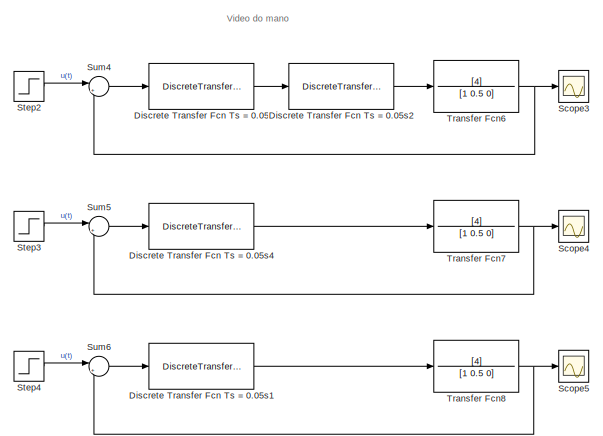
[diagram: root canvas - part 1/6, top right region]
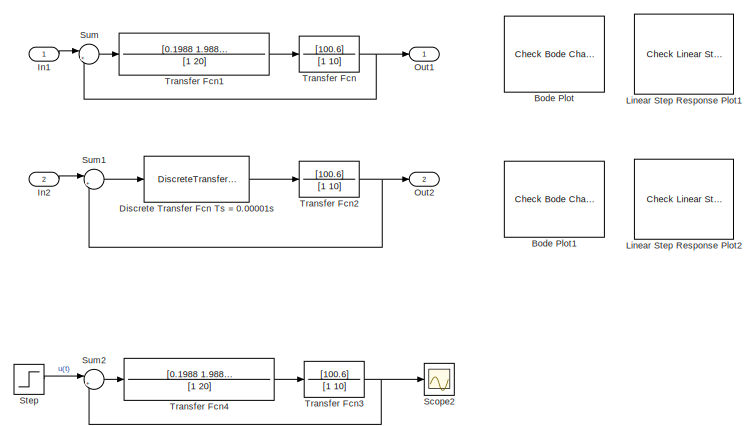
[diagram: root canvas - part 2/6, top left region]
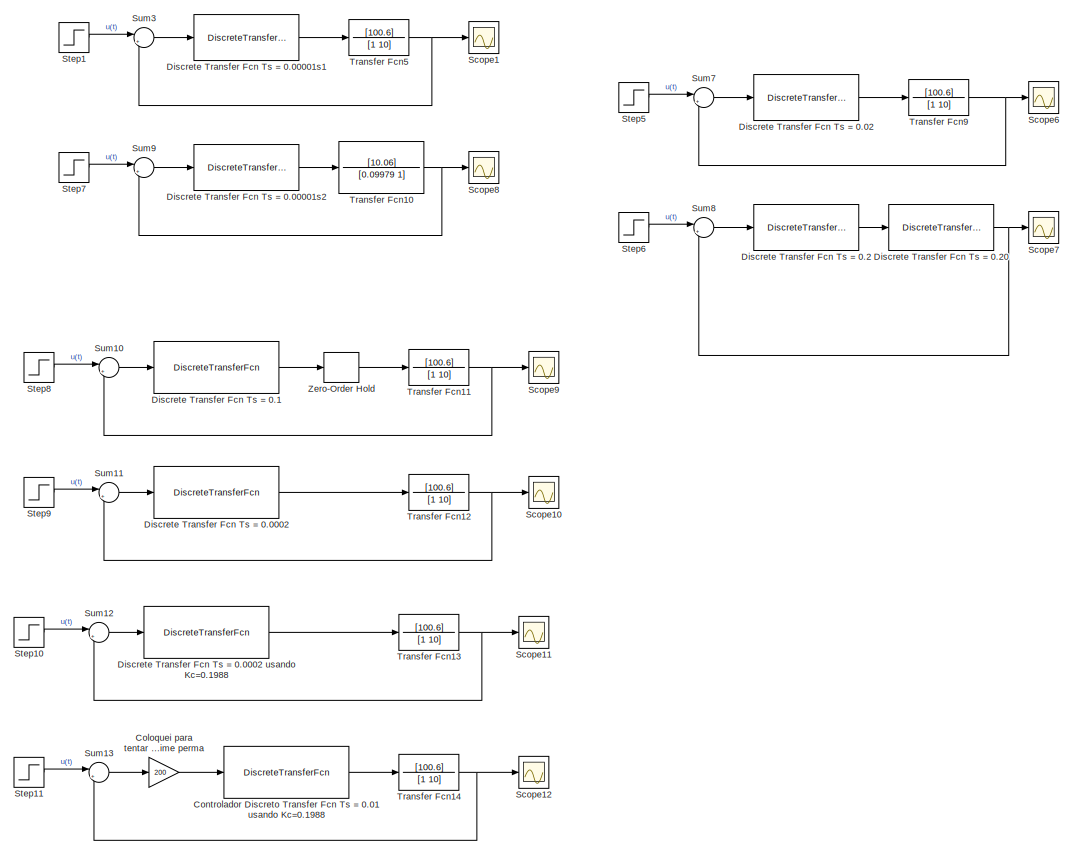
[diagram: root canvas - part 3/6, top center region]
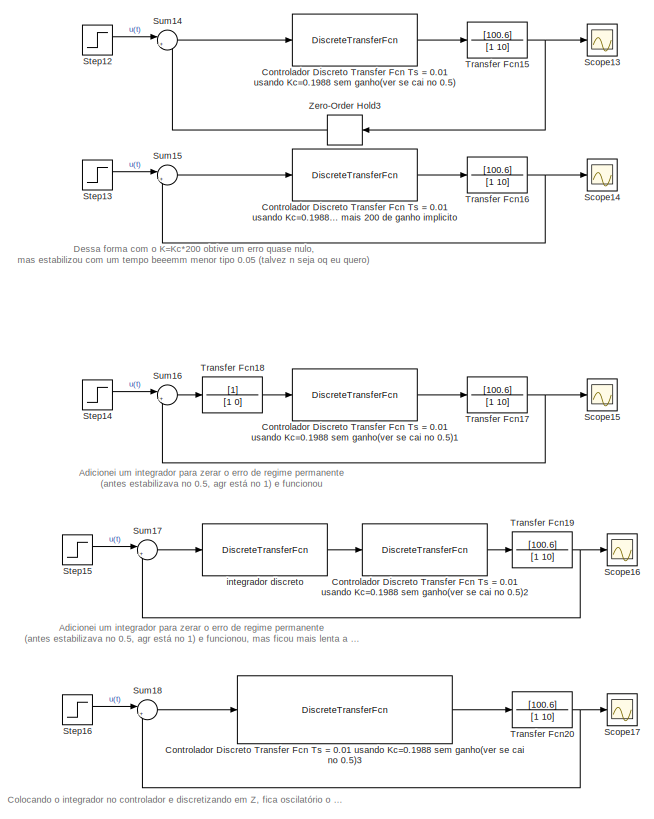
[diagram: root canvas - part 4/6, middle left region]
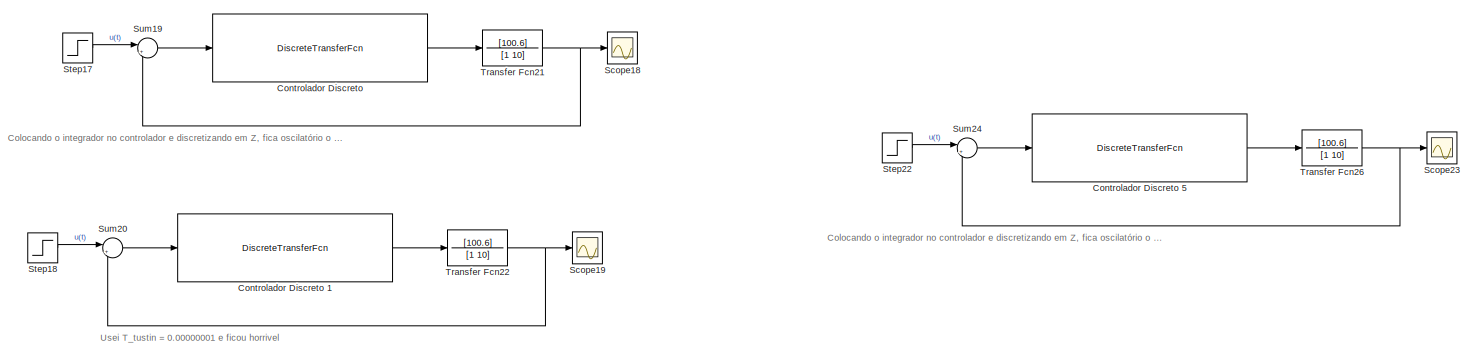
[diagram: root canvas - part 5/6, full width, bottom band]
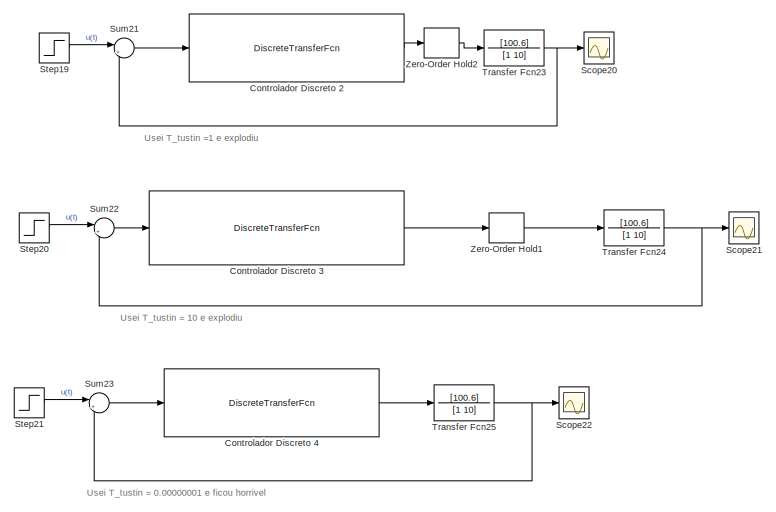
[diagram: root canvas - part 6/6, bottom left region]
MODEL slx_ce7d7df38e49
KIND model
CONFIG AbsTol = auto
CONFIG EnableMultiTasking = off
CONFIG FixedStep = auto
CONFIG MaxStep = auto
CONFIG MinStep = auto
CONFIG RelTol = 1e-3
CONFIG SampleTimeConstraint = Unconstrained
CONFIG Solver = VariableStepAuto
CONFIG SolverName = VariableStepAuto
CONFIG StartTime = 0.0
CONFIG StopTime = 10.0
BLOCK [Reference] Bode Plot  REF=slctrlblks/Model Verification/Check Bode 
Characteristics
  InstantiateOnLoad = on
  Ports = []
  SourceBlock = slctrlblks/Model Verification/Check Bode \nCharacteristics
  SourceProductBaseCode = SD
  SourceType = Checks_Bode
BLOCK [Reference] Bode Plot1  REF=slctrlblks/Model Verification/Check Bode 
Characteristics
  InstantiateOnLoad = on
  Ports = []
  SourceBlock = slctrlblks/Model Verification/Check Bode \nCharacteristics
  SourceProductBaseCode = SD
  SourceType = Checks_Bode
BLOCK [Gain] Coloquei para tentar zerar o erro de regime perma
  Gain = 200
BLOCK [DiscreteTransferFcn] Controlador Discreto 
  Denominator = [1 -1]
  InputPortMap = u0
  Numerator = [0.266303231333277 -0.171072514193562]
  Ports = [1, 1]
BLOCK [DiscreteTransferFcn] Controlador Discreto 1
  Denominator = [1 -1]
  InputPortMap = u0
  Numerator = [0.218687920378778 -0.218687825148061]
  Ports = [1, 1]
BLOCK [DiscreteTransferFcn] Controlador Discreto 2
  Denominator = [1 -1]
  InputPortMap = u0
  Numerator = [4.980223729749151 4.542847984222311]
  Ports = [1, 1]
BLOCK [DiscreteTransferFcn] Controlador Discreto 3
  Denominator = [1 -1]
  InputPortMap = u0
  Numerator = [47.834046442620739 47.396670697093889]
  Ports = [1, 1]
BLOCK [DiscreteTransferFcn] Controlador Discreto 4
  Denominator = [1 -1]
  InputPortMap = u0
  Numerator = [0.218718346592904 -0.218657398933935]
  Ports = [1, 1]
BLOCK [DiscreteTransferFcn] Controlador Discreto 5
  Denominator = [1 -1]
  InputPortMap = u0
  Numerator = [0.313918589903134 -0.123457155623705]
  Ports = [1, 1]
BLOCK [DiscreteTransferFcn] Controlador Discreto Transfer Fcn Ts = 0.01 usando Kc=0.1988
  Denominator = [1 -0.8182]
  InputPortMap = u0
  Numerator = [0.1898 -0.1717]
  Ports = [1, 1]
BLOCK [DiscreteTransferFcn] Controlador Discreto Transfer Fcn Ts = 0.01 usando Kc=0.1988 com mais 200 de ganho implicito
  Denominator = [1 -0.8182]
  InputPortMap = u0
  Numerator = [37.95 -34.34]
  Ports = [1, 1]
BLOCK [DiscreteTransferFcn] Controlador Discreto Transfer Fcn Ts = 0.01 usando Kc=0.1988 sem ganho(ver se cai no 0.5)
  Denominator = [1 -0.8182]
  InputPortMap = u0
  Numerator = [0.1898 -0.1717]
  Ports = [1, 1]
BLOCK [DiscreteTransferFcn] Controlador Discreto Transfer Fcn Ts = 0.01 usando Kc=0.1988 sem ganho(ver se cai no 0.5)1
  Denominator = [1 -0.8182]
  InputPortMap = u0
  Numerator = [0.1898 -0.1717]
  Ports = [1, 1]
BLOCK [DiscreteTransferFcn] Controlador Discreto Transfer Fcn Ts = 0.01 usando Kc=0.1988 sem ganho(ver se cai no 0.5)2
  Denominator = [1 -0.8182]
  InputPortMap = u0
  Numerator = [0.1898 -0.1717]
  Ports = [1, 1]
BLOCK [DiscreteTransferFcn] Controlador Discreto Transfer Fcn Ts = 0.01 usando Kc=0.1988 sem ganho(ver se cai no 0.5)3
  Denominator = [1 -1.818 0.8182]
  InputPortMap = u0
  Numerator = [0.0009488 9.036e-05 -0.0008585]
  Ports = [1, 1]
BLOCK [DiscreteTransferFcn] Discrete Transfer Fcn Ts = 0.00001s
  Denominator = [1 0]
  InputPortMap = u0
  Numerator = [0.1988 -0.0994]
  Ports = [1, 1]
BLOCK [DiscreteTransferFcn] Discrete Transfer Fcn Ts = 0.00001s1
  Denominator = [1 0]
  InputPortMap = u0
  Numerator = [0.1988 -0.0994]
  Ports = [1, 1]
BLOCK [DiscreteTransferFcn] Discrete Transfer Fcn Ts = 0.00001s2
  Denominator = [1 0]
  InputPortMap = u0
  Numerator = [0.1988 -0.0994]
  Ports = [1, 1]
BLOCK [DiscreteTransferFcn] Discrete Transfer Fcn Ts = 0.0002
  Denominator = [1 -0.996]
  InputPortMap = u0
  Numerator = [0.999 -0.997]
  Ports = [1, 1]
BLOCK [DiscreteTransferFcn] Discrete Transfer Fcn Ts = 0.0002 usando Kc=0.1988
  Denominator = [1 -0.996]
  InputPortMap = u0
  Numerator = [0.1986 -0.1982]
  Ports = [1, 1]
BLOCK [DiscreteTransferFcn] Discrete Transfer Fcn Ts = 0.02
  Denominator = [1 0.3333]
  InputPortMap = u0
  Numerator = [0.6667 0]
  Ports = [1, 1]
BLOCK [DiscreteTransferFcn] Discrete Transfer Fcn Ts = 0.05
  Denominator = [1 -0.6549]
  InputPortMap = u0
  Numerator = [0.8767 -0.7782]
  Ports = [1, 1]
BLOCK [DiscreteTransferFcn] Discrete Transfer Fcn Ts = 0.05s1
  Denominator = [1 -0.6549]
  InputPortMap = u0
  Numerator = [0.8767 -0.7782]
  Ports = [1, 1]
BLOCK [DiscreteTransferFcn] Discrete Transfer Fcn Ts = 0.05s2
  Denominator = [1 -0.9986]
  InputPortMap = u0
  Numerator = [1.002 -0.9968]
  Ports = [1, 1]
BLOCK [DiscreteTransferFcn] Discrete Transfer Fcn Ts = 0.05s4
  Denominator = [1 0.9532]
  InputPortMap = u0
  Numerator = [0.3021 0.2553]
  Ports = [1, 1]
BLOCK [DiscreteTransferFcn] Discrete Transfer Fcn Ts = 0.1
  Denominator = [1 -0.998]
  InputPortMap = u0
  Numerator = [0.01005 0.01005]
  Ports = [1, 1]
BLOCK [DiscreteTransferFcn] Discrete Transfer Fcn Ts = 0.2
  Denominator = [1 0.3333]
  InputPortMap = u0
  Numerator = [0.6667 0]
  Ports = [1, 1]
BLOCK [DiscreteTransferFcn] Discrete Transfer Fcn Ts = 0.20
  Denominator = [1 0]
  InputPortMap = u0
  Numerator = [5.03 5.03]
  Ports = [1, 1]
BLOCK [Inport] In1
BLOCK [Inport] In2
  Port = 2
BLOCK [Reference] Linear Step Response Plot1  REF=slctrlblks/Model Verification/Check Linear Step Response
Characteristics
  InstantiateOnLoad = on
  Ports = []
  SourceBlock = slctrlblks/Model Verification/Check Linear Step Response\nCharacteristics
  SourceProductBaseCode = SD
  SourceType = Checks_LinearStepResponse
BLOCK [Reference] Linear Step Response Plot2  REF=slctrlblks/Model Verification/Check Linear Step Response
Characteristics
  InstantiateOnLoad = on
  Ports = []
  SourceBlock = slctrlblks/Model Verification/Check Linear Step Response\nCharacteristics
  SourceProductBaseCode = SD
  SourceType = Checks_LinearStepResponse
BLOCK [Outport] Out1
BLOCK [Outport] Out2
  Port = 2
BLOCK [Scope] Scope1
  Floating = off
  NumInputPorts = 1
  Ports = [1]
  ScopeSpecificationString = Simulink.scopes.TimeScopeBlockCfg('CurrentConfiguration', extmgr.ConfigurationSet(extmgr.Configuration('Core','General UI',true),extmgr.Configuration('Core','Source UI',true),extmgr.Configuration('Sources','WiredSimulink',true),extmgr.Configuration('Visuals','Time Domain',true,'SerializedDisplays',{struct('MinYLimReal','-0.0625','MaxYLimReal','0.56249','YLabelReal','','MinYLimMag','0.00000','MaxYL...<+1360ch>
BLOCK [Scope] Scope10
  Floating = off
  NumInputPorts = 1
  Ports = [1]
  ScopeSpecificationString = Simulink.scopes.TimeScopeBlockCfg('CurrentConfiguration', extmgr.ConfigurationSet(extmgr.Configuration('Core','General UI',true),extmgr.Configuration('Core','Source UI',true),extmgr.Configuration('Sources','WiredSimulink',true,'DataLoggingVariableName','ScopeData9'),extmgr.Configuration('Visuals','Time Domain',true,'SerializedDisplays',{struct('MinYLimReal','-0.18926','MaxYLimReal','1.60903','YLab...<+1419ch>
BLOCK [Scope] Scope11
  Floating = off
  NumInputPorts = 1
  Ports = [1]
  ScopeSpecificationString = Simulink.scopes.TimeScopeBlockCfg('CurrentConfiguration', extmgr.ConfigurationSet(extmgr.Configuration('Core','General UI',true),extmgr.Configuration('Core','Source UI',true),extmgr.Configuration('Sources','WiredSimulink',true,'DataLoggingVariableName','ScopeData10'),extmgr.Configuration('Visuals','Time Domain',true,'SerializedDisplays',{struct('MinYLimReal','-0.03258','MaxYLimReal','0.58015','YLa...<+1406ch>
BLOCK [Scope] Scope12
  Floating = off
  NumInputPorts = 1
  Ports = [1]
  ScopeSpecificationString = Simulink.scopes.TimeScopeBlockCfg('CurrentConfiguration', extmgr.ConfigurationSet(extmgr.Configuration('Core','General UI',true),extmgr.Configuration('Core','Source UI',true),extmgr.Configuration('Sources','WiredSimulink',true,'DataLoggingVariableName','ScopeData11'),extmgr.Configuration('Visuals','Time Domain',true,'SerializedDisplays',{struct('MinYLimReal','0.96751','MaxYLimReal','1.00343','YLab...<+1420ch>
BLOCK [Scope] Scope13
  Floating = off
  NumInputPorts = 1
  Ports = [1]
  ScopeSpecificationString = Simulink.scopes.TimeScopeBlockCfg('CurrentConfiguration', extmgr.ConfigurationSet(extmgr.Configuration('Core','General UI',true),extmgr.Configuration('Core','Source UI',true),extmgr.Configuration('Sources','WiredSimulink',true,'DataLoggingVariableName','ScopeData1'),extmgr.Configuration('Visuals','Time Domain',true,'SerializedDisplays',{struct('MinYLimReal','-0.06151','MaxYLimReal','0.51539','YLab...<+1419ch>
BLOCK [Scope] Scope14
  Floating = off
  NumInputPorts = 1
  Ports = [1]
  ScopeSpecificationString = Simulink.scopes.TimeScopeBlockCfg('CurrentConfiguration', extmgr.ConfigurationSet(extmgr.Configuration('Core','General UI',true),extmgr.Configuration('Core','Source UI',true),extmgr.Configuration('Sources','WiredSimulink',true,'DataLoggingVariableName','ScopeData2'),extmgr.Configuration('Visuals','Time Domain',true,'SerializedDisplays',{struct('MinYLimReal','-0.01453','MaxYLimReal','1.00981','YLab...<+1419ch>
BLOCK [Scope] Scope15
  Floating = off
  NumInputPorts = 1
  Ports = [1]
  ScopeSpecificationString = Simulink.scopes.TimeScopeBlockCfg('CurrentConfiguration', extmgr.ConfigurationSet(extmgr.Configuration('Core','General UI',true),extmgr.Configuration('Core','Source UI',true),extmgr.Configuration('Sources','WiredSimulink',true,'DataLoggingVariableName','ScopeData3'),extmgr.Configuration('Visuals','Time Domain',true,'SerializedDisplays',{struct('MinYLimReal','-0.1249','MaxYLimReal','1.12407','YLabe...<+1417ch>
BLOCK [Scope] Scope16
  Floating = off
  NumInputPorts = 1
  Ports = [1]
  ScopeSpecificationString = Simulink.scopes.TimeScopeBlockCfg('CurrentConfiguration', extmgr.ConfigurationSet(extmgr.Configuration('Core','General UI',true),extmgr.Configuration('Core','Source UI',true),extmgr.Configuration('Sources','WiredSimulink',true,'DataLoggingVariableName','ScopeData4'),extmgr.Configuration('Visuals','Time Domain',true,'SerializedDisplays',{struct('MinYLimReal','-0.1249','MaxYLimReal','1.12407','YLabe...<+1417ch>
BLOCK [Scope] Scope17
  Floating = off
  NumInputPorts = 1
  Ports = [1]
  ScopeSpecificationString = Simulink.scopes.TimeScopeBlockCfg('CurrentConfiguration', extmgr.ConfigurationSet(extmgr.Configuration('Core','General UI',true),extmgr.Configuration('Core','Source UI',true),extmgr.Configuration('Sources','WiredSimulink',true,'DataLoggingVariableName','ScopeData1'),extmgr.Configuration('Visuals','Time Domain',true,'SerializedDisplays',{struct('MinYLimReal','-0.1249','MaxYLimReal','1.12407','YLabe...<+1417ch>
BLOCK [Scope] Scope18
  Floating = off
  NumInputPorts = 1
  Ports = [1]
  ScopeSpecificationString = Simulink.scopes.TimeScopeBlockCfg('CurrentConfiguration', extmgr.ConfigurationSet(extmgr.Configuration('Core','General UI',true),extmgr.Configuration('Core','Source UI',true),extmgr.Configuration('Sources','WiredSimulink',true,'DataLoggingVariableName','ScopeData1'),extmgr.Configuration('Visuals','Time Domain',true,'SerializedDisplays',{struct('MinYLimReal','0.36781','MaxYLimReal','1.81937','YLabe...<+1416ch>
BLOCK [Scope] Scope19
  Floating = off
  NumInputPorts = 1
  Ports = [1]
  ScopeSpecificationString = Simulink.scopes.TimeScopeBlockCfg('CurrentConfiguration', extmgr.ConfigurationSet(extmgr.Configuration('Core','General UI',true),extmgr.Configuration('Core','Source UI',true),extmgr.Configuration('Sources','WiredSimulink',true,'DataLoggingVariableName','ScopeData1'),extmgr.Configuration('Visuals','Time Domain',true,'SerializedDisplays',{struct('MinYLimReal','-0.04163','MaxYLimReal','0.7678','YLabe...<+1415ch>
BLOCK [Scope] Scope2
  Floating = off
  NumInputPorts = 1
  Ports = [1]
  ScopeSpecificationString = Simulink.scopes.TimeScopeBlockCfg('CurrentConfiguration', extmgr.ConfigurationSet(extmgr.Configuration('Core','General UI',true),extmgr.Configuration('Core','Source UI',true),extmgr.Configuration('Sources','WiredSimulink',true,'DataLoggingVariableName','ScopeData2'),extmgr.Configuration('Visuals','Time Domain',true,'SerializedDisplays',{struct('MinYLimReal','-0.02261','MaxYLimReal','0.52192','YLab...<+1418ch>
BLOCK [Scope] Scope20
  Floating = off
  NumInputPorts = 1
  Ports = [1]
  ScopeSpecificationString = Simulink.scopes.TimeScopeBlockCfg('CurrentConfiguration', extmgr.ConfigurationSet(extmgr.Configuration('Core','General UI',true),extmgr.Configuration('Core','Source UI',true),extmgr.Configuration('Sources','WiredSimulink',true,'DataLoggingVariableName','ScopeData1'),extmgr.Configuration('Visuals','Time Domain',true,'SerializedDisplays',{struct('MinYLimReal','-73068979457932108995070451545131365194...<+1781ch>
BLOCK [Scope] Scope21
  Floating = off
  NumInputPorts = 1
  Ports = [1]
  ScopeSpecificationString = Simulink.scopes.TimeScopeBlockCfg('CurrentConfiguration', extmgr.ConfigurationSet(extmgr.Configuration('Core','General UI',true),extmgr.Configuration('Core','Source UI',true),extmgr.Configuration('Sources','WiredSimulink',true,'DataLoggingVariableName','ScopeData2'),extmgr.Configuration('Visuals','Time Domain',true,'SerializedDisplays',{struct('MinYLimReal','-1.00000','MaxYLimReal','1.00000','YLab...<+1419ch>
BLOCK [Scope] Scope22
  Floating = off
  NumInputPorts = 1
  Ports = [1]
  ScopeSpecificationString = Simulink.scopes.TimeScopeBlockCfg('CurrentConfiguration', extmgr.ConfigurationSet(extmgr.Configuration('Core','General UI',true),extmgr.Configuration('Core','Source UI',true),extmgr.Configuration('Sources','WiredSimulink',true,'DataLoggingVariableName','ScopeData3'),extmgr.Configuration('Visuals','Time Domain',true,'SerializedDisplays',{struct('MinYLimReal','0.947013','MaxYLimReal','0.947025','YLa...<+1425ch>
BLOCK [Scope] Scope23
  Floating = off
  NumInputPorts = 1
  Ports = [1]
  ScopeSpecificationString = Simulink.scopes.TimeScopeBlockCfg('CurrentConfiguration', extmgr.ConfigurationSet(extmgr.Configuration('Core','General UI',true),extmgr.Configuration('Core','Source UI',true),extmgr.Configuration('Sources','WiredSimulink',true,'DataLoggingVariableName','ScopeData1'),extmgr.Configuration('Visuals','Time Domain',true,'SerializedDisplays',{struct('MinYLimReal','-0.09093','MaxYLimReal','1.93795','YLab...<+1419ch>
BLOCK [Scope] Scope3
  Floating = off
  NumInputPorts = 1
  Ports = [1]
  ScopeSpecificationString = Simulink.scopes.TimeScopeBlockCfg('CurrentConfiguration', extmgr.ConfigurationSet(extmgr.Configuration('Core','General UI',true),extmgr.Configuration('Core','Source UI',true),extmgr.Configuration('Sources','WiredSimulink',true,'DataLoggingVariableName','ScopeData1'),extmgr.Configuration('Visuals','Time Domain',true,'SerializedDisplays',{struct('MinYLimReal','-0.23771','MaxYLimReal','2.13936','YLab...<+1407ch>
BLOCK [Scope] Scope4
  Floating = off
  NumInputPorts = 1
  Ports = [1]
  ScopeSpecificationString = Simulink.scopes.TimeScopeBlockCfg('CurrentConfiguration', extmgr.ConfigurationSet(extmgr.Configuration('Core','General UI',true),extmgr.Configuration('Core','Source UI',true),extmgr.Configuration('Sources','WiredSimulink',true,'DataLoggingVariableName','ScopeData3'),extmgr.Configuration('Visuals','Time Domain',true,'SerializedDisplays',{struct('MinYLimReal','-0.1837','MaxYLimReal','1.65327','YLabe...<+1399ch>
BLOCK [Scope] Scope5
  Floating = off
  NumInputPorts = 1
  Ports = [1]
  ScopeSpecificationString = Simulink.scopes.TimeScopeBlockCfg('CurrentConfiguration', extmgr.ConfigurationSet(extmgr.Configuration('Core','General UI',true),extmgr.Configuration('Core','Source UI',true),extmgr.Configuration('Sources','WiredSimulink',true,'DataLoggingVariableName','ScopeData4'),extmgr.Configuration('Visuals','Time Domain',true,'SerializedDisplays',{struct('MinYLimReal','-0.18357','MaxYLimReal','1.65216','YLab...<+1401ch>
BLOCK [Scope] Scope6
  Floating = off
  NumInputPorts = 1
  Ports = [1]
  ScopeSpecificationString = Simulink.scopes.TimeScopeBlockCfg('CurrentConfiguration', extmgr.ConfigurationSet(extmgr.Configuration('Core','General UI',true),extmgr.Configuration('Core','Source UI',true),extmgr.Configuration('Sources','WiredSimulink',true,'DataLoggingVariableName','ScopeData5'),extmgr.Configuration('Visuals','Time Domain',true,'SerializedDisplays',{struct('MinYLimReal','-0.10427','MaxYLimReal','0.93844','YLab...<+1401ch>
BLOCK [Scope] Scope7
  Floating = off
  NumInputPorts = 1
  Ports = [1]
  ScopeSpecificationString = Simulink.scopes.TimeScopeBlockCfg('CurrentConfiguration', extmgr.ConfigurationSet(extmgr.Configuration('Core','General UI',true),extmgr.Configuration('Core','Source UI',true),extmgr.Configuration('Sources','WiredSimulink',true,'DataLoggingVariableName','ScopeData6'),extmgr.Configuration('Visuals','Time Domain',true,'SerializedDisplays',{struct('MinYLimReal','0.82666','MaxYLimReal','0.83757','YLabe...<+1436ch>
BLOCK [Scope] Scope8
  Floating = off
  NumInputPorts = 1
  Ports = [1]
  ScopeSpecificationString = Simulink.scopes.TimeScopeBlockCfg('CurrentConfiguration', extmgr.ConfigurationSet(extmgr.Configuration('Core','General UI',true),extmgr.Configuration('Core','Source UI',true),extmgr.Configuration('Sources','WiredSimulink',true,'DataLoggingVariableName','ScopeData7'),extmgr.Configuration('Visuals','Time Domain',true,'SerializedDisplays',{struct('MinYLimReal','-0.0625','MaxYLimReal','0.56249','YLabe...<+1400ch>
BLOCK [Scope] Scope9
  Floating = off
  NumInputPorts = 1
  Ports = [1]
  ScopeSpecificationString = Simulink.scopes.TimeScopeBlockCfg('CurrentConfiguration', extmgr.ConfigurationSet(extmgr.Configuration('Core','General UI',true),extmgr.Configuration('Core','Source UI',true),extmgr.Configuration('Sources','WiredSimulink',true,'DataLoggingVariableName','ScopeData8'),extmgr.Configuration('Visuals','Time Domain',true,'SerializedDisplays',{struct('MinYLimReal','-0.21579','MaxYLimReal','1.94215','YLab...<+1403ch>
BLOCK [Step] Step
  SampleTime = 0
BLOCK [Step] Step1
  SampleTime = 0
BLOCK [Step] Step10
  SampleTime = 0
BLOCK [Step] Step11
  SampleTime = 0
BLOCK [Step] Step12
  SampleTime = 0
BLOCK [Step] Step13
  SampleTime = 0
BLOCK [Step] Step14
  SampleTime = 0
BLOCK [Step] Step15
  SampleTime = 0
BLOCK [Step] Step16
  SampleTime = 0
BLOCK [Step] Step17
  SampleTime = 0
BLOCK [Step] Step18
  SampleTime = 0
BLOCK [Step] Step19
  SampleTime = 0
BLOCK [Step] Step2
  SampleTime = 0
BLOCK [Step] Step20
  SampleTime = 0
BLOCK [Step] Step21
  SampleTime = 0
BLOCK [Step] Step22
  SampleTime = 0
BLOCK [Step] Step3
  SampleTime = 0
BLOCK [Step] Step4
  SampleTime = 0
BLOCK [Step] Step5
  SampleTime = 0
BLOCK [Step] Step6
  SampleTime = 0
BLOCK [Step] Step7
  SampleTime = 0
BLOCK [Step] Step8
  SampleTime = 0
BLOCK [Step] Step9
  SampleTime = 0
BLOCK [Sum] Sum
  Inputs = |+-
  Ports = [2, 1]
BLOCK [Sum] Sum1
  Inputs = |+-
  Ports = [2, 1]
BLOCK [Sum] Sum10
  Inputs = |+-
  Ports = [2, 1]
BLOCK [Sum] Sum11
  Inputs = |+-
  Ports = [2, 1]
BLOCK [Sum] Sum12
  Inputs = |+-
  Ports = [2, 1]
BLOCK [Sum] Sum13
  Inputs = |+-
  Ports = [2, 1]
BLOCK [Sum] Sum14
  Inputs = |+-
  Ports = [2, 1]
BLOCK [Sum] Sum15
  Inputs = |+-
  Ports = [2, 1]
BLOCK [Sum] Sum16
  Inputs = |+-
  Ports = [2, 1]
BLOCK [Sum] Sum17
  Inputs = |+-
  Ports = [2, 1]
BLOCK [Sum] Sum18
  Inputs = |+-
  Ports = [2, 1]
BLOCK [Sum] Sum19
  Inputs = |+-
  Ports = [2, 1]
BLOCK [Sum] Sum2
  Inputs = |+-
  Ports = [2, 1]
BLOCK [Sum] Sum20
  Inputs = |+-
  Ports = [2, 1]
BLOCK [Sum] Sum21
  Inputs = |+-
  Ports = [2, 1]
BLOCK [Sum] Sum22
  Inputs = |+-
  Ports = [2, 1]
BLOCK [Sum] Sum23
  Inputs = |+-
  Ports = [2, 1]
BLOCK [Sum] Sum24
  Inputs = |+-
  Ports = [2, 1]
BLOCK [Sum] Sum3
  Inputs = |+-
  Ports = [2, 1]
BLOCK [Sum] Sum4
  Inputs = |+-
  Ports = [2, 1]
BLOCK [Sum] Sum5
  Inputs = |+-
  Ports = [2, 1]
BLOCK [Sum] Sum6
  Inputs = |+-
  Ports = [2, 1]
BLOCK [Sum] Sum7
  Inputs = |+-
  Ports = [2, 1]
BLOCK [Sum] Sum8
  Inputs = |+-
  Ports = [2, 1]
BLOCK [Sum] Sum9
  Inputs = |+-
  Ports = [2, 1]
BLOCK [TransferFcn] Transfer Fcn
  Denominator = [1 10]
  Numerator = [100.6]
BLOCK [TransferFcn] Transfer Fcn1
  Denominator = [1 20]
  Numerator = [0.1988 1.9881]
BLOCK [TransferFcn] Transfer Fcn10
  Denominator = [0.09979 1]
  Numerator = [10.06]
BLOCK [TransferFcn] Transfer Fcn11
  Denominator = [1 10]
  Numerator = [100.6]
BLOCK [TransferFcn] Transfer Fcn12
  Denominator = [1 10]
  Numerator = [100.6]
BLOCK [TransferFcn] Transfer Fcn13
  Denominator = [1 10]
  Numerator = [100.6]
BLOCK [TransferFcn] Transfer Fcn14
  Denominator = [1 10]
  Numerator = [100.6]
BLOCK [TransferFcn] Transfer Fcn15
  Denominator = [1 10]
  Numerator = [100.6]
BLOCK [TransferFcn] Transfer Fcn16
  Denominator = [1 10]
  Numerator = [100.6]
BLOCK [TransferFcn] Transfer Fcn17
  Denominator = [1 10]
  Numerator = [100.6]
BLOCK [TransferFcn] Transfer Fcn18
  Denominator = [1 0]
BLOCK [TransferFcn] Transfer Fcn19
  Denominator = [1 10]
  Numerator = [100.6]
BLOCK [TransferFcn] Transfer Fcn2
  Denominator = [1 10]
  Numerator = [100.6]
BLOCK [TransferFcn] Transfer Fcn20
  Denominator = [1 10]
  Numerator = [100.6]
BLOCK [TransferFcn] Transfer Fcn21
  Denominator = [1 10]
  Numerator = [100.6]
BLOCK [TransferFcn] Transfer Fcn22
  Denominator = [1 10]
  Numerator = [100.6]
BLOCK [TransferFcn] Transfer Fcn23
  Denominator = [1 10]
  Numerator = [100.6]
BLOCK [TransferFcn] Transfer Fcn24
  Denominator = [1 10]
  Numerator = [100.6]
BLOCK [TransferFcn] Transfer Fcn25
  Denominator = [1 10]
  Numerator = [100.6]
BLOCK [TransferFcn] Transfer Fcn26
  Denominator = [1 10]
  Numerator = [100.6]
BLOCK [TransferFcn] Transfer Fcn3
  Denominator = [1 10]
  Numerator = [100.6]
BLOCK [TransferFcn] Transfer Fcn4
  Denominator = [1 20]
  Numerator = [0.1988 1.9881]
BLOCK [TransferFcn] Transfer Fcn5
  Denominator = [1 10]
  Numerator = [100.6]
BLOCK [TransferFcn] Transfer Fcn6
  Denominator = [1 0.5 0]
  Numerator = [4]
BLOCK [TransferFcn] Transfer Fcn7
  Denominator = [1 0.5 0]
  Numerator = [4]
BLOCK [TransferFcn] Transfer Fcn8
  Denominator = [1 0.5 0]
  Numerator = [4]
BLOCK [TransferFcn] Transfer Fcn9
  Denominator = [1 10]
  Numerator = [100.6]
BLOCK [ZeroOrderHold] Zero-Order Hold
  SampleTime = 0.0002
BLOCK [ZeroOrderHold] Zero-Order Hold1
  SampleTime = 10
BLOCK [ZeroOrderHold] Zero-Order Hold2
BLOCK [ZeroOrderHold] Zero-Order Hold3
  NameLocation = top
  SampleTime = 0.01
BLOCK [DiscreteTransferFcn] integrador discreto
  Denominator = [1 -1]
  InputPortMap = u0
  Numerator = [0.005 0.005]
  Ports = [1, 1]
ANNOTATION (root): Adicionei um integrador para zerar o erro de regime permanente (antes estabilizava no 0.5, agr está no 1) e funcionou
ANNOTATION (root): Adicionei um integrador para zerar o erro de regime permanente (antes estabilizava no 0.5, agr está no 1) e funcionou, mas ficou mais lenta a resposta :(((
ANNOTATION (root): Colocando o integrador no controlador e discretizando em Z, fica oscilatório o sinal :((((
ANNOTATION (root): Dessa forma com o K=Kc*200 obtive um erro quase nulo, mas estabilizou com um tempo beeemm menor tipo 0.05 (talvez n seja oq eu quero)
ANNOTATION (root): Usei T_tustin = 0.00000001 e ficou horrivel
ANNOTATION (root): Usei T_tustin = 10 e explodiu
ANNOTATION (root): Usei T_tustin =1 e explodiu
ANNOTATION (root): Video do mano
LINE Coloquei para tentar zerar o erro de regime perma:1 -> Controlador Discreto Transfer Fcn Ts = 0.01 usando Kc=0.1988:1
LINE Controlador Discreto 1:1 -> Transfer Fcn22:1
LINE Controlador Discreto 2:1 -> Zero-Order Hold2:1
LINE Controlador Discreto 3:1 -> Zero-Order Hold1:1
LINE Controlador Discreto 4:1 -> Transfer Fcn25:1
LINE Controlador Discreto 5:1 -> Transfer Fcn26:1
LINE Controlador Discreto :1 -> Transfer Fcn21:1
LINE Controlador Discreto Transfer Fcn Ts = 0.01 usando Kc=0.1988 com mais 200 de ganho implicito:1 -> Transfer Fcn16:1
LINE Controlador Discreto Transfer Fcn Ts = 0.01 usando Kc=0.1988 sem ganho(ver se cai no 0.5)1:1 -> Transfer Fcn17:1
LINE Controlador Discreto Transfer Fcn Ts = 0.01 usando Kc=0.1988 sem ganho(ver se cai no 0.5)2:1 -> Transfer Fcn19:1
LINE Controlador Discreto Transfer Fcn Ts = 0.01 usando Kc=0.1988 sem ganho(ver se cai no 0.5)3:1 -> Transfer Fcn20:1
LINE Controlador Discreto Transfer Fcn Ts = 0.01 usando Kc=0.1988 sem ganho(ver se cai no 0.5):1 -> Transfer Fcn15:1
LINE Controlador Discreto Transfer Fcn Ts = 0.01 usando Kc=0.1988:1 -> Transfer Fcn14:1
LINE Discrete Transfer Fcn Ts = 0.00001s1:1 -> Transfer Fcn5:1
LINE Discrete Transfer Fcn Ts = 0.00001s2:1 -> Transfer Fcn10:1
LINE Discrete Transfer Fcn Ts = 0.00001s:1 -> Transfer Fcn2:1
LINE Discrete Transfer Fcn Ts = 0.0002 usando Kc=0.1988:1 -> Transfer Fcn13:1
LINE Discrete Transfer Fcn Ts = 0.0002:1 -> Transfer Fcn12:1
LINE Discrete Transfer Fcn Ts = 0.02:1 -> Transfer Fcn9:1
LINE Discrete Transfer Fcn Ts = 0.05:1 -> Discrete Transfer Fcn Ts = 0.05s2:1
LINE Discrete Transfer Fcn Ts = 0.05s1:1 -> Transfer Fcn8:1
LINE Discrete Transfer Fcn Ts = 0.05s2:1 -> Transfer Fcn6:1
LINE Discrete Transfer Fcn Ts = 0.05s4:1 -> Transfer Fcn7:1
LINE Discrete Transfer Fcn Ts = 0.1:1 -> Zero-Order Hold:1
NET Discrete Transfer Fcn Ts = 0.20:1 -> Scope7:1, Sum8:2
LINE Discrete Transfer Fcn Ts = 0.2:1 -> Discrete Transfer Fcn Ts = 0.20:1
LINE In1:1 -> Sum:1
LINE In2:1 -> Sum1:1
LINE Step10:1 -> Sum12:1
LINE Step11:1 -> Sum13:1
LINE Step12:1 -> Sum14:1
LINE Step13:1 -> Sum15:1
LINE Step14:1 -> Sum16:1
LINE Step15:1 -> Sum17:1
LINE Step16:1 -> Sum18:1
LINE Step17:1 -> Sum19:1
LINE Step18:1 -> Sum20:1
LINE Step19:1 -> Sum21:1
LINE Step1:1 -> Sum3:1
LINE Step20:1 -> Sum22:1
LINE Step21:1 -> Sum23:1
LINE Step22:1 -> Sum24:1
LINE Step2:1 -> Sum4:1
LINE Step3:1 -> Sum5:1
LINE Step4:1 -> Sum6:1
LINE Step5:1 -> Sum7:1
LINE Step6:1 -> Sum8:1
LINE Step7:1 -> Sum9:1
LINE Step8:1 -> Sum10:1
LINE Step9:1 -> Sum11:1
LINE Step:1 -> Sum2:1
LINE Sum10:1 -> Discrete Transfer Fcn Ts = 0.1:1
LINE Sum11:1 -> Discrete Transfer Fcn Ts = 0.0002:1
LINE Sum12:1 -> Discrete Transfer Fcn Ts = 0.0002 usando Kc=0.1988:1
LINE Sum13:1 -> Coloquei para tentar zerar o erro de regime perma:1
LINE Sum14:1 -> Controlador Discreto Transfer Fcn Ts = 0.01 usando Kc=0.1988 sem ganho(ver se cai no 0.5):1
LINE Sum15:1 -> Controlador Discreto Transfer Fcn Ts = 0.01 usando Kc=0.1988 com mais 200 de ganho implicito:1
LINE Sum16:1 -> Transfer Fcn18:1
LINE Sum17:1 -> integrador discreto:1
LINE Sum18:1 -> Controlador Discreto Transfer Fcn Ts = 0.01 usando Kc=0.1988 sem ganho(ver se cai no 0.5)3:1
LINE Sum19:1 -> Controlador Discreto :1
LINE Sum1:1 -> Discrete Transfer Fcn Ts = 0.00001s:1
LINE Sum20:1 -> Controlador Discreto 1:1
LINE Sum21:1 -> Controlador Discreto 2:1
LINE Sum22:1 -> Controlador Discreto 3:1
LINE Sum23:1 -> Controlador Discreto 4:1
LINE Sum24:1 -> Controlador Discreto 5:1
LINE Sum2:1 -> Transfer Fcn4:1
LINE Sum3:1 -> Discrete Transfer Fcn Ts = 0.00001s1:1
LINE Sum4:1 -> Discrete Transfer Fcn Ts = 0.05:1
LINE Sum5:1 -> Discrete Transfer Fcn Ts = 0.05s4:1
LINE Sum6:1 -> Discrete Transfer Fcn Ts = 0.05s1:1
LINE Sum7:1 -> Discrete Transfer Fcn Ts = 0.02:1
LINE Sum8:1 -> Discrete Transfer Fcn Ts = 0.2:1
LINE Sum9:1 -> Discrete Transfer Fcn Ts = 0.00001s2:1
LINE Sum:1 -> Transfer Fcn1:1
NET Transfer Fcn10:1 -> Scope8:1, Sum9:2
NET Transfer Fcn11:1 -> Scope9:1, Sum10:2
NET Transfer Fcn12:1 -> Scope10:1, Sum11:2
NET Transfer Fcn13:1 -> Scope11:1, Sum12:2
NET Transfer Fcn14:1 -> Scope12:1, Sum13:2
NET Transfer Fcn15:1 -> Scope13:1, Zero-Order Hold3:1
NET Transfer Fcn16:1 -> Scope14:1, Sum15:2
NET Transfer Fcn17:1 -> Scope15:1, Sum16:2
LINE Transfer Fcn18:1 -> Controlador Discreto Transfer Fcn Ts = 0.01 usando Kc=0.1988 sem ganho(ver se cai no 0.5)1:1
NET Transfer Fcn19:1 -> Scope16:1, Sum17:2
LINE Transfer Fcn1:1 -> Transfer Fcn:1
NET Transfer Fcn20:1 -> Scope17:1, Sum18:2
NET Transfer Fcn21:1 -> Scope18:1, Sum19:2
NET Transfer Fcn22:1 -> Scope19:1, Sum20:2
NET Transfer Fcn23:1 -> Scope20:1, Sum21:2
NET Transfer Fcn24:1 -> Scope21:1, Sum22:2
NET Transfer Fcn25:1 -> Scope22:1, Sum23:2
NET Transfer Fcn26:1 -> Scope23:1, Sum24:2
NET Transfer Fcn2:1 -> Out2:1, Sum1:2
NET Transfer Fcn3:1 -> Scope2:1, Sum2:2
LINE Transfer Fcn4:1 -> Transfer Fcn3:1
NET Transfer Fcn5:1 -> Scope1:1, Sum3:2
NET Transfer Fcn6:1 -> Scope3:1, Sum4:2
NET Transfer Fcn7:1 -> Scope4:1, Sum5:2
NET Transfer Fcn8:1 -> Scope5:1, Sum6:2
NET Transfer Fcn9:1 -> Scope6:1, Sum7:2
NET Transfer Fcn:1 -> Out1:1, Sum:2
LINE Zero-Order Hold1:1 -> Transfer Fcn24:1
LINE Zero-Order Hold2:1 -> Transfer Fcn23:1
LINE Zero-Order Hold3:1 -> Sum14:2
LINE Zero-Order Hold:1 -> Transfer Fcn11:1
LINE integrador discreto:1 -> Controlador Discreto Transfer Fcn Ts = 0.01 usando Kc=0.1988 sem ganho(ver se cai no 0.5)2:1
note: NET lines group one-source signal fan-out (src -> all destinations, sorted); 1:1 wires keep LINE
